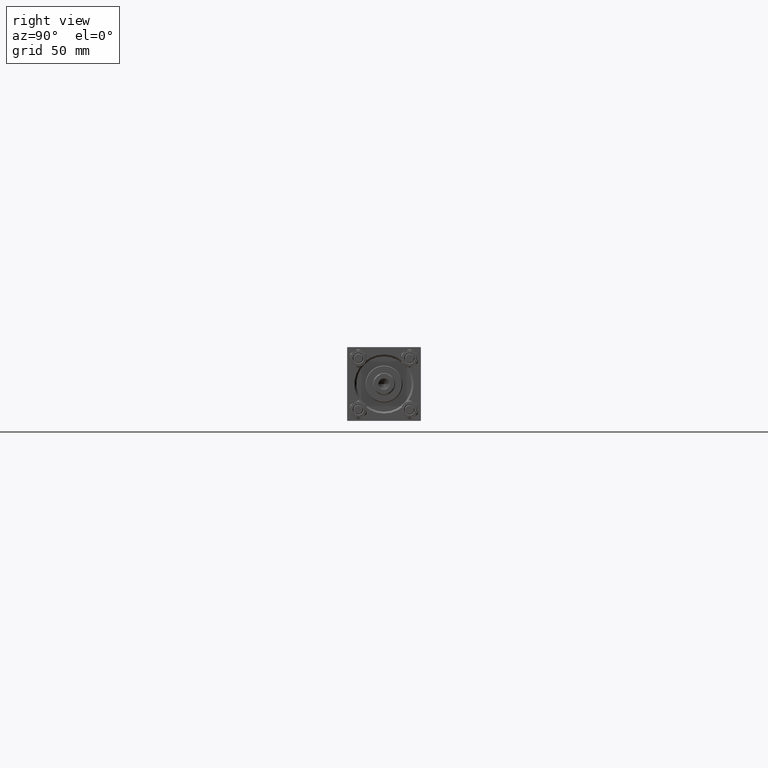
[diagram: clean part render]
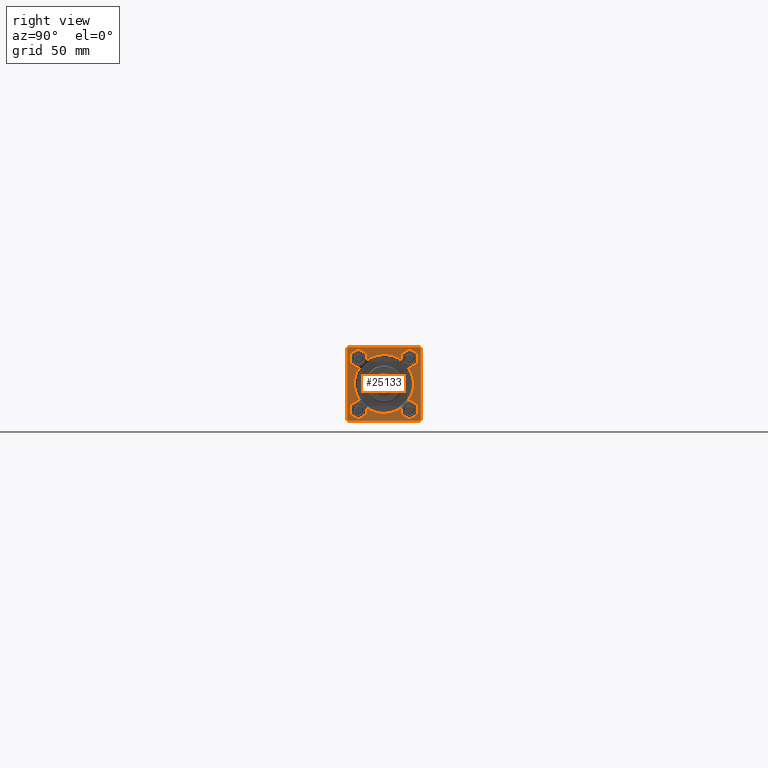
[diagram: same view with one face highlighted and labeled with its STEP entity id]
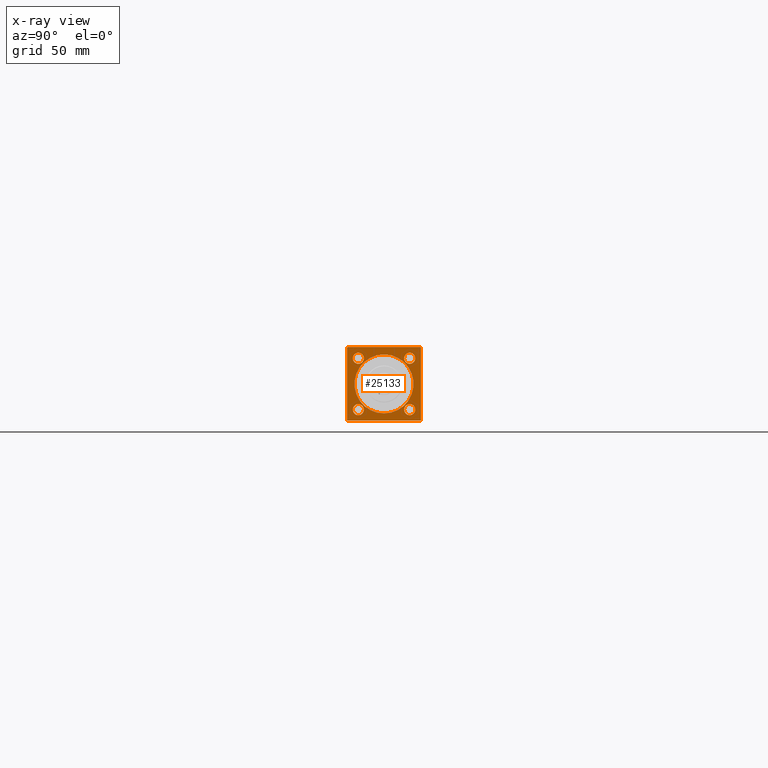
[diagram: x-ray of the same camera — body ghosted, the highlighted face saturated]
A machine part, right view. The second image highlights one B-rep face of the part: STEP entity #25133.
The next image is the same camera in x-ray: the body ghosted, the highlighted face saturated — about 0% of this face is hidden behind the body in this view.
In plain terms, the highlighted planar face has unit normal (-1, 0, 0).
Its self-contained STEP definition (entity closure, byte-faithful):
#56 = DIRECTION ( 'NONE',  ( 0.000000000000000000, 0.000000000000000000, 1.000000000000000000 ) ) ;
#181 = VERTEX_POINT ( 'NONE', #15671 ) ;
#976 = EDGE_CURVE ( 'NONE', #35512, #38296, #14120, .T. ) ;
#1045 = DIRECTION ( 'NONE',  ( 0.000000000000000000, 0.000000000000000000, 1.000000000000000000 ) ) ;
#1104 = EDGE_CURVE ( 'NONE', #30963, #181, #35184, .T. ) ;
#1106 = AXIS2_PLACEMENT_3D ( 'NONE', #11673, #11917, #7148 ) ;
#1692 = VECTOR ( 'NONE', #5936, 1000.000000000000000 ) ;
#1810 = DIRECTION ( 'NONE',  ( 0.000000000000000000, 0.000000000000000000, -1.000000000000000000 ) ) ;
#1920 = EDGE_CURVE ( 'NONE', #29312, #8242, #43135, .T. ) ;
#2078 = LINE ( 'NONE', #33114, #3396 ) ;
#2365 = CARTESIAN_POINT ( 'NONE',  ( 528.0000000000000000, -30.00000000000000000, 29.49999999999999289 ) ) ;
#3330 = VECTOR ( 'NONE', #4445, 1000.000000000000000 ) ;
#3396 = VECTOR ( 'NONE', #13695, 1000.000000000000000 ) ;
#4312 = AXIS2_PLACEMENT_3D ( 'NONE', #37602, #46383, #11861 ) ;
#4445 = DIRECTION ( 'NONE',  ( 0.000000000000000000, -1.000000000000000000, -1.156482317317871478E-16 ) ) ;
#4673 = DIRECTION ( 'NONE',  ( -1.000000000000000000, 0.000000000000000000, -0.000000000000000000 ) ) ;
#5195 = DIRECTION ( 'NONE',  ( 0.000000000000000000, 0.000000000000000000, 1.000000000000000000 ) ) ;
#5920 = ORIENTED_EDGE ( 'NONE', *, *, #8913, .T. ) ;
#5936 = DIRECTION ( 'NONE',  ( -0.000000000000000000, 0.7071067811865867636, 0.7071067811865081598 ) ) ;
#5976 = EDGE_LOOP ( 'NONE', ( #36045, #28979 ) ) ;
#6578 = AXIS2_PLACEMENT_3D ( 'NONE', #32244, #47865, #48115 ) ;
#7148 = DIRECTION ( 'NONE',  ( 0.000000000000000000, 0.000000000000000000, 1.000000000000000000 ) ) ;
#7423 = VERTEX_POINT ( 'NONE', #20800 ) ;
#7652 = CARTESIAN_POINT ( 'NONE',  ( 528.0000000000000000, -20.84999999999999076, 20.85000000000000497 ) ) ;
#7783 = CARTESIAN_POINT ( 'NONE',  ( 528.0000000000000000, 20.84999999999999787, -25.35000000000011511 ) ) ;
#7971 = EDGE_CURVE ( 'NONE', #7996, #30963, #8840, .T. ) ;
#7996 = VERTEX_POINT ( 'NONE', #42357 ) ;
#8242 = VERTEX_POINT ( 'NONE', #7783 ) ;
#8373 = CIRCLE ( 'NONE', #1106, 4.500000000000115463 ) ;
#8714 = ORIENTED_EDGE ( 'NONE', *, *, #34493, .T. ) ;
#8840 = LINE ( 'NONE', #46887, #44904 ) ;
#8913 = EDGE_CURVE ( 'NONE', #7423, #42821, #17647, .T. ) ;
#9167 = VERTEX_POINT ( 'NONE', #23023 ) ;
#9256 = CARTESIAN_POINT ( 'NONE',  ( 528.0000000000000000, 0.000000000000000000, -23.99999999999991473 ) ) ;
#9404 = DIRECTION ( 'NONE',  ( 0.000000000000000000, 0.7071067811865867636, -0.7071067811865081598 ) ) ;
#9534 = AXIS2_PLACEMENT_3D ( 'NONE', #39722, #4673, #16774 ) ;
#10343 = CARTESIAN_POINT ( 'NONE',  ( 528.0000000000000000, 20.84999999999999787, 25.35000000000011511 ) ) ;
#10655 = ORIENTED_EDGE ( 'NONE', *, *, #20626, .F. ) ;
#10916 = AXIS2_PLACEMENT_3D ( 'NONE', #27295, #46437, #1045 ) ;
#10983 = LINE ( 'NONE', #40492, #1692 ) ;
#11191 = CIRCLE ( 'NONE', #39357, 23.99999999999991473 ) ;
#11242 = FACE_BOUND ( 'NONE', #32778, .T. ) ;
#11494 = VERTEX_POINT ( 'NONE', #13535 ) ;
#11673 = CARTESIAN_POINT ( 'NONE',  ( 528.0000000000000000, 20.84999999999999787, 20.85000000000000142 ) ) ;
#11678 = DIRECTION ( 'NONE',  ( -1.000000000000000000, 0.000000000000000000, -0.000000000000000000 ) ) ;
#11861 = DIRECTION ( 'NONE',  ( 0.000000000000000000, 0.000000000000000000, 1.000000000000000000 ) ) ;
#11917 = DIRECTION ( 'NONE',  ( -1.000000000000000000, 0.000000000000000000, -0.000000000000000000 ) ) ;
#12009 = DIRECTION ( 'NONE',  ( 0.000000000000000000, 0.000000000000000000, 1.000000000000000000 ) ) ;
#12400 = CIRCLE ( 'NONE', #4312, 23.99999999999991473 ) ;
#12620 = ORIENTED_EDGE ( 'NONE', *, *, #1920, .T. ) ;
#12701 = EDGE_CURVE ( 'NONE', #38296, #35512, #29646, .T. ) ;
#13169 = EDGE_CURVE ( 'NONE', #7423, #36437, #43927, .T. ) ;
#13255 = DIRECTION ( 'NONE',  ( -1.000000000000000000, 0.000000000000000000, -0.000000000000000000 ) ) ;
#13535 = CARTESIAN_POINT ( 'NONE',  ( 528.0000000000000000, 2.939152317953637245E-15, 23.99999999999991473 ) ) ;
#13695 = DIRECTION ( 'NONE',  ( 0.000000000000000000, -1.000000000000000000, -1.156482317317871478E-16 ) ) ;
#13988 = AXIS2_PLACEMENT_3D ( 'NONE', #7652, #11678, #56 ) ;
#14120 = CIRCLE ( 'NONE', #10916, 4.500000000000115463 ) ;
#14283 = FACE_BOUND ( 'NONE', #41529, .T. ) ;
#14409 = EDGE_CURVE ( 'NONE', #35924, #11494, #11191, .T. ) ;
#14486 = LINE ( 'NONE', #2365, #45844 ) ;
#15019 = FACE_BOUND ( 'NONE', #30074, .T. ) ;
#15261 = PLANE ( 'NONE',  #46147 ) ;
#15671 = CARTESIAN_POINT ( 'NONE',  ( 528.0000000000000000, -29.49999999999994316, -30.00000000000000000 ) ) ;
#16390 = DIRECTION ( 'NONE',  ( 0.000000000000000000, 0.000000000000000000, -1.000000000000000000 ) ) ;
#16774 = DIRECTION ( 'NONE',  ( 0.000000000000000000, 0.000000000000000000, 1.000000000000000000 ) ) ;
#17272 = CARTESIAN_POINT ( 'NONE',  ( 528.0000000000000000, -30.00000000000000000, -29.49999999999998579 ) ) ;
#17647 = LINE ( 'NONE', #20703, #28076 ) ;
#17711 = CARTESIAN_POINT ( 'NONE',  ( 528.0000000000000000, 30.00000000000000000, 30.00000000000000000 ) ) ;
#17731 = VERTEX_POINT ( 'NONE', #27239 ) ;
#17762 = DIRECTION ( 'NONE',  ( -0.000000000000000000, -0.7071067811865867636, -0.7071067811865081598 ) ) ;
#18469 = ORIENTED_EDGE ( 'NONE', *, *, #13169, .F. ) ;
#18804 = FACE_BOUND ( 'NONE', #5976, .T. ) ;
#18894 = ORIENTED_EDGE ( 'NONE', *, *, #1104, .T. ) ;
#19054 = DIRECTION ( 'NONE',  ( -0.000000000000000000, 0.000000000000000000, 1.000000000000000000 ) ) ;
#19308 = ORIENTED_EDGE ( 'NONE', *, *, #38552, .T. ) ;
#20553 = CARTESIAN_POINT ( 'NONE',  ( 528.0000000000000000, -20.84999999999999076, 16.34999999999988773 ) ) ;
#20626 = EDGE_CURVE ( 'NONE', #9167, #181, #23636, .T. ) ;
#20674 = CARTESIAN_POINT ( 'NONE',  ( 528.0000000000000000, -20.84999999999999076, -16.34999999999988773 ) ) ;
#20703 = CARTESIAN_POINT ( 'NONE',  ( 528.0000000000000000, 29.49999999999994316, 30.00000000000000000 ) ) ;
#20800 = CARTESIAN_POINT ( 'NONE',  ( 528.0000000000000000, 30.00000000000000000, 29.50000000000000000 ) ) ;
#21853 = CIRCLE ( 'NONE', #24257, 4.500000000000115463 ) ;
#23023 = CARTESIAN_POINT ( 'NONE',  ( 528.0000000000000000, 29.49999999999994316, -29.99999999999999289 ) ) ;
#23128 = DIRECTION ( 'NONE',  ( -1.000000000000000000, 0.000000000000000000, -0.000000000000000000 ) ) ;
#23519 = EDGE_CURVE ( 'NONE', #42821, #27507, #2078, .T. ) ;
#23636 = LINE ( 'NONE', #38753, #3330 ) ;
#24257 = AXIS2_PLACEMENT_3D ( 'NONE', #24383, #47553, #5195 ) ;
#24383 = CARTESIAN_POINT ( 'NONE',  ( 528.0000000000000000, 20.84999999999999787, -20.85000000000000142 ) ) ;
#25094 = CIRCLE ( 'NONE', #6578, 4.500000000000115463 ) ;
#25133 = ADVANCED_FACE ( 'NONE', ( #11242, #14283, #18804, #26879, #15019, #49568 ), #15261, .F. ) ;
#26879 = FACE_BOUND ( 'NONE', #28920, .T. ) ;
#27239 = CARTESIAN_POINT ( 'NONE',  ( 528.0000000000000000, -20.84999999999999076, 25.35000000000011866 ) ) ;
#27295 = CARTESIAN_POINT ( 'NONE',  ( 528.0000000000000000, -20.84999999999999076, -20.85000000000000497 ) ) ;
#27507 = VERTEX_POINT ( 'NONE', #31600 ) ;
#27746 = ORIENTED_EDGE ( 'NONE', *, *, #38424, .T. ) ;
#28076 = VECTOR ( 'NONE', #44856, 1000.000000000000000 ) ;
#28920 = EDGE_LOOP ( 'NONE', ( #8714, #37695 ) ) ;
#28979 = ORIENTED_EDGE ( 'NONE', *, *, #45143, .T. ) ;
#29057 = ORIENTED_EDGE ( 'NONE', *, *, #45442, .T. ) ;
#29228 = CARTESIAN_POINT ( 'NONE',  ( 528.0000000000000000, 29.49999999999994316, 30.00000000000000000 ) ) ;
#29312 = VERTEX_POINT ( 'NONE', #39084 ) ;
#29447 = AXIS2_PLACEMENT_3D ( 'NONE', #44001, #13255, #40968 ) ;
#29646 = CIRCLE ( 'NONE', #9534, 4.500000000000115463 ) ;
#29877 = ORIENTED_EDGE ( 'NONE', *, *, #23519, .T. ) ;
#29960 = EDGE_CURVE ( 'NONE', #27507, #7996, #14486, .T. ) ;
#30074 = EDGE_LOOP ( 'NONE', ( #46273, #29057 ) ) ;
#30963 = VERTEX_POINT ( 'NONE', #17272 ) ;
#31244 = EDGE_CURVE ( 'NONE', #47419, #47515, #46654, .T. ) ;
#31600 = CARTESIAN_POINT ( 'NONE',  ( 528.0000000000000000, -29.49999999999994316, 29.99999999999999289 ) ) ;
#31867 = ORIENTED_EDGE ( 'NONE', *, *, #29960, .T. ) ;
#32244 = CARTESIAN_POINT ( 'NONE',  ( 528.0000000000000000, -20.84999999999999076, 20.85000000000000497 ) ) ;
#32778 = EDGE_LOOP ( 'NONE', ( #44715, #33587 ) ) ;
#33114 = CARTESIAN_POINT ( 'NONE',  ( 528.0000000000000000, 30.00000000000000000, 30.00000000000000000 ) ) ;
#33587 = ORIENTED_EDGE ( 'NONE', *, *, #976, .T. ) ;
#34230 = CARTESIAN_POINT ( 'NONE',  ( 528.0000000000000000, -20.84999999999999076, -25.35000000000011866 ) ) ;
#34493 = EDGE_CURVE ( 'NONE', #36180, #17731, #25094, .T. ) ;
#35184 = LINE ( 'NONE', #36124, #41494 ) ;
#35512 = VERTEX_POINT ( 'NONE', #20674 ) ;
#35924 = VERTEX_POINT ( 'NONE', #9256 ) ;
#35952 = EDGE_LOOP ( 'NONE', ( #44463, #18894, #10655, #19308, #18469, #5920, #29877, #31867 ) ) ;
#36045 = ORIENTED_EDGE ( 'NONE', *, *, #31244, .T. ) ;
#36124 = CARTESIAN_POINT ( 'NONE',  ( 528.0000000000000000, -29.49999999999994316, -30.00000000000000000 ) ) ;
#36180 = VERTEX_POINT ( 'NONE', #20553 ) ;
#36437 = VERTEX_POINT ( 'NONE', #41565 ) ;
#37060 = AXIS2_PLACEMENT_3D ( 'NONE', #46535, #23128, #12009 ) ;
#37602 = CARTESIAN_POINT ( 'NONE',  ( 528.0000000000000000, 0.000000000000000000, 0.000000000000000000 ) ) ;
#37695 = ORIENTED_EDGE ( 'NONE', *, *, #43694, .T. ) ;
#38048 = DIRECTION ( 'NONE',  ( -1.000000000000000000, 0.000000000000000000, -0.000000000000000000 ) ) ;
#38296 = VERTEX_POINT ( 'NONE', #34230 ) ;
#38424 = EDGE_CURVE ( 'NONE', #8242, #29312, #21853, .T. ) ;
#38552 = EDGE_CURVE ( 'NONE', #9167, #36437, #10983, .T. ) ;
#38753 = CARTESIAN_POINT ( 'NONE',  ( 528.0000000000000000, 30.00000000000000000, -29.99999999999999289 ) ) ;
#39084 = CARTESIAN_POINT ( 'NONE',  ( 528.0000000000000000, 20.84999999999999787, -16.34999999999988418 ) ) ;
#39318 = VECTOR ( 'NONE', #1810, 1000.000000000000000 ) ;
#39357 = AXIS2_PLACEMENT_3D ( 'NONE', #42305, #38048, #49410 ) ;
#39722 = CARTESIAN_POINT ( 'NONE',  ( 528.0000000000000000, -20.84999999999999076, -20.85000000000000497 ) ) ;
#40492 = CARTESIAN_POINT ( 'NONE',  ( 528.0000000000000000, 30.00000000000000000, -29.49999999999999289 ) ) ;
#40968 = DIRECTION ( 'NONE',  ( 0.000000000000000000, 0.000000000000000000, 1.000000000000000000 ) ) ;
#41247 = CARTESIAN_POINT ( 'NONE',  ( 528.0000000000000000, 0.000000000000000000, 0.000000000000000000 ) ) ;
#41494 = VECTOR ( 'NONE', #9404, 1000.000000000000000 ) ;
#41529 = EDGE_LOOP ( 'NONE', ( #27746, #12620 ) ) ;
#41565 = CARTESIAN_POINT ( 'NONE',  ( 528.0000000000000000, 30.00000000000000000, -29.49999999999997868 ) ) ;
#42228 = DIRECTION ( 'NONE',  ( -1.000000000000000000, 0.000000000000000000, -0.000000000000000000 ) ) ;
#42305 = CARTESIAN_POINT ( 'NONE',  ( 528.0000000000000000, 0.000000000000000000, 0.000000000000000000 ) ) ;
#42357 = CARTESIAN_POINT ( 'NONE',  ( 528.0000000000000000, -30.00000000000000000, 29.49999999999999289 ) ) ;
#42821 = VERTEX_POINT ( 'NONE', #29228 ) ;
#43135 = CIRCLE ( 'NONE', #29447, 4.500000000000115463 ) ;
#43694 = EDGE_CURVE ( 'NONE', #17731, #36180, #44556, .T. ) ;
#43927 = LINE ( 'NONE', #17711, #39318 ) ;
#44001 = CARTESIAN_POINT ( 'NONE',  ( 528.0000000000000000, 20.84999999999999787, -20.85000000000000142 ) ) ;
#44463 = ORIENTED_EDGE ( 'NONE', *, *, #7971, .T. ) ;
#44556 = CIRCLE ( 'NONE', #13988, 4.500000000000115463 ) ;
#44715 = ORIENTED_EDGE ( 'NONE', *, *, #12701, .T. ) ;
#44856 = DIRECTION ( 'NONE',  ( 0.000000000000000000, -0.7071067811865867636, 0.7071067811865081598 ) ) ;
#44904 = VECTOR ( 'NONE', #16390, 1000.000000000000000 ) ;
#45143 = EDGE_CURVE ( 'NONE', #47515, #47419, #8373, .T. ) ;
#45442 = EDGE_CURVE ( 'NONE', #11494, #35924, #12400, .T. ) ;
#45844 = VECTOR ( 'NONE', #17762, 1000.000000000000000 ) ;
#46147 = AXIS2_PLACEMENT_3D ( 'NONE', #41247, #42228, #19054 ) ;
#46273 = ORIENTED_EDGE ( 'NONE', *, *, #14409, .T. ) ;
#46383 = DIRECTION ( 'NONE',  ( -1.000000000000000000, 0.000000000000000000, -0.000000000000000000 ) ) ;
#46437 = DIRECTION ( 'NONE',  ( -1.000000000000000000, 0.000000000000000000, -0.000000000000000000 ) ) ;
#46535 = CARTESIAN_POINT ( 'NONE',  ( 528.0000000000000000, 20.84999999999999787, 20.85000000000000142 ) ) ;
#46654 = CIRCLE ( 'NONE', #37060, 4.500000000000115463 ) ;
#46887 = CARTESIAN_POINT ( 'NONE',  ( 528.0000000000000000, -30.00000000000000000, 29.99999999999999289 ) ) ;
#47419 = VERTEX_POINT ( 'NONE', #48155 ) ;
#47515 = VERTEX_POINT ( 'NONE', #10343 ) ;
#47553 = DIRECTION ( 'NONE',  ( -1.000000000000000000, 0.000000000000000000, -0.000000000000000000 ) ) ;
#47865 = DIRECTION ( 'NONE',  ( -1.000000000000000000, 0.000000000000000000, -0.000000000000000000 ) ) ;
#48115 = DIRECTION ( 'NONE',  ( 0.000000000000000000, 0.000000000000000000, 1.000000000000000000 ) ) ;
#48155 = CARTESIAN_POINT ( 'NONE',  ( 528.0000000000000000, 20.84999999999999787, 16.34999999999988418 ) ) ;
#49410 = DIRECTION ( 'NONE',  ( 0.000000000000000000, 0.000000000000000000, 1.000000000000000000 ) ) ;
#49568 = FACE_OUTER_BOUND ( 'NONE', #35952, .T. ) ;